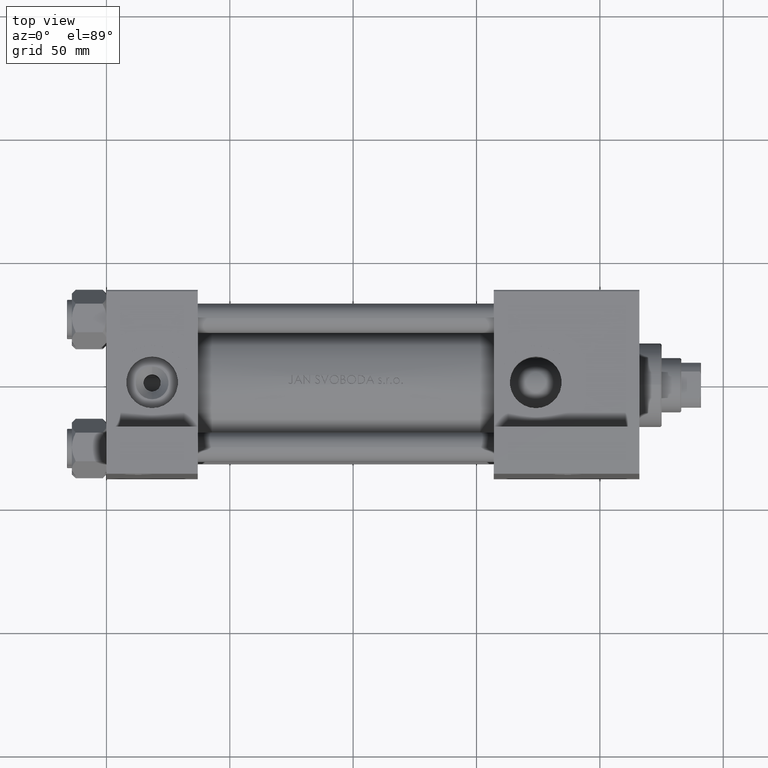
[diagram: clean part render]
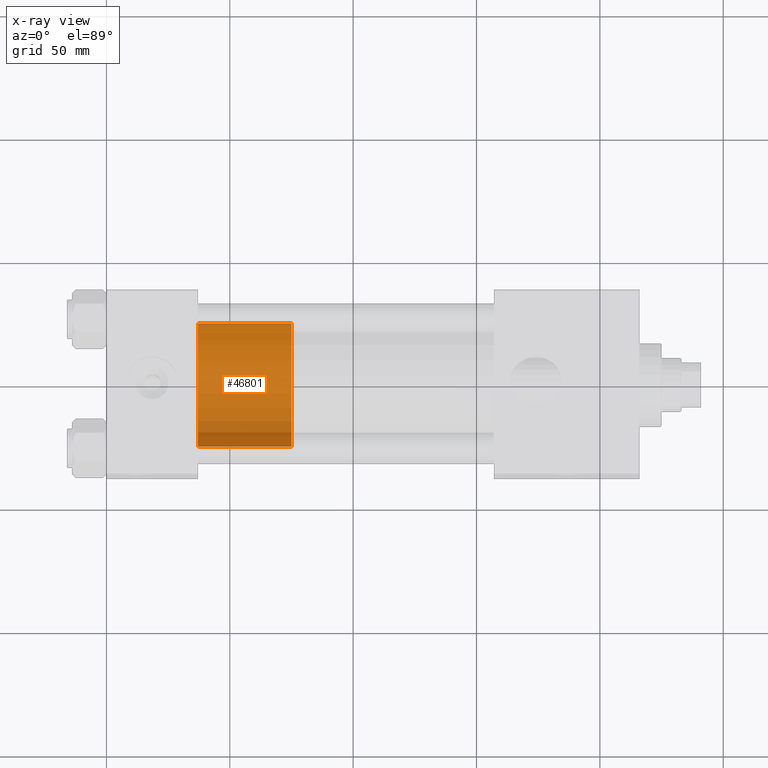
[diagram: x-ray — body ghosted, one internal face saturated and labeled with its STEP entity id]
A machine part, top view, then the same camera in x-ray: the body is ghosted and one INTERNAL B-rep face — a face not visible from any outside direction — is saturated and labeled: STEP entity #46801.
In plain terms, the highlighted cylindrical surface (partial cylindrical patch) has radius 25 mm, axis along (-1, 0, 0).
Its self-contained STEP definition (entity closure, byte-faithful):
#1608 = AXIS2_PLACEMENT_3D ( 'NONE', #28656, #23927, #8505 ) ;
#2032 = ORIENTED_EDGE ( 'NONE', *, *, #13743, .F. ) ;
#3540 = LINE ( 'NONE', #20458, #41339 ) ;
#4721 = VERTEX_POINT ( 'NONE', #38540 ) ;
#7839 = CARTESIAN_POINT ( 'NONE',  ( 25.00000000000000000, 3.061616997868383043E-15, 0.000000000000000000 ) ) ;
#8505 = DIRECTION ( 'NONE',  ( -1.000000000000000000, 0.000000000000000000, 0.000000000000000000 ) ) ;
#9762 = DIRECTION ( 'NONE',  ( 1.000000000000000000, 0.000000000000000000, 0.000000000000000000 ) ) ;
#9830 = CARTESIAN_POINT ( 'NONE',  ( 0.000000000000000000, 0.000000000000000000, 0.000000000000000000 ) ) ;
#11379 = DIRECTION ( 'NONE',  ( -0.000000000000000000, -0.000000000000000000, -1.000000000000000000 ) ) ;
#13743 = EDGE_CURVE ( 'NONE', #31753, #24606, #37278, .T. ) ;
#14034 = AXIS2_PLACEMENT_3D ( 'NONE', #9830, #37934, #18050 ) ;
#14486 = CARTESIAN_POINT ( 'NONE',  ( 0.000000000000000000, 0.000000000000000000, 38.00000000000000000 ) ) ;
#15145 = VERTEX_POINT ( 'NONE', #7839 ) ;
#18050 = DIRECTION ( 'NONE',  ( 1.000000000000000000, 0.000000000000000000, 0.000000000000000000 ) ) ;
#18633 = ORIENTED_EDGE ( 'NONE', *, *, #46717, .T. ) ;
#20458 = CARTESIAN_POINT ( 'NONE',  ( 25.00000000000000000, 3.061616997868383043E-15, 38.00000000000000000 ) ) ;
#23291 = ORIENTED_EDGE ( 'NONE', *, *, #28817, .F. ) ;
#23927 = DIRECTION ( 'NONE',  ( -0.000000000000000000, -0.000000000000000000, -1.000000000000000000 ) ) ;
#24606 = VERTEX_POINT ( 'NONE', #30584 ) ;
#25832 = CARTESIAN_POINT ( 'NONE',  ( -25.00000000000000000, 0.000000000000000000, 38.00000000000000000 ) ) ;
#28656 = CARTESIAN_POINT ( 'NONE',  ( 0.000000000000000000, 0.000000000000000000, 38.00000000000000000 ) ) ;
#28817 = EDGE_CURVE ( 'NONE', #4721, #31753, #32179, .T. ) ;
#29672 = DIRECTION ( 'NONE',  ( 0.000000000000000000, 0.000000000000000000, 1.000000000000000000 ) ) ;
#30584 = CARTESIAN_POINT ( 'NONE',  ( -25.00000000000000000, 0.000000000000000000, 0.000000000000000000 ) ) ;
#31654 = CYLINDRICAL_SURFACE ( 'NONE', #1608, 25.00000000000000000 ) ;
#31753 = VERTEX_POINT ( 'NONE', #48979 ) ;
#32179 = CIRCLE ( 'NONE', #38516, 25.00000000000000000 ) ;
#35878 = DIRECTION ( 'NONE',  ( -0.000000000000000000, -0.000000000000000000, -1.000000000000000000 ) ) ;
#36125 = FACE_OUTER_BOUND ( 'NONE', #39095, .T. ) ;
#36194 = EDGE_CURVE ( 'NONE', #15145, #24606, #43568, .T. ) ;
#37278 = LINE ( 'NONE', #25832, #47315 ) ;
#37934 = DIRECTION ( 'NONE',  ( 0.000000000000000000, 0.000000000000000000, 1.000000000000000000 ) ) ;
#38516 = AXIS2_PLACEMENT_3D ( 'NONE', #14486, #29672, #9762 ) ;
#38540 = CARTESIAN_POINT ( 'NONE',  ( 25.00000000000000000, 3.061616997868383043E-15, 38.00000000000000000 ) ) ;
#39095 = EDGE_LOOP ( 'NONE', ( #23291, #18633, #42785, #2032 ) ) ;
#41339 = VECTOR ( 'NONE', #35878, 1000.000000000000000 ) ;
#42785 = ORIENTED_EDGE ( 'NONE', *, *, #36194, .T. ) ;
#43568 = CIRCLE ( 'NONE', #14034, 25.00000000000000000 ) ;
#46717 = EDGE_CURVE ( 'NONE', #4721, #15145, #3540, .T. ) ;
#46801 = ADVANCED_FACE ( 'NONE', ( #36125 ), #31654, .T. ) ;
#47315 = VECTOR ( 'NONE', #11379, 1000.000000000000000 ) ;
#48979 = CARTESIAN_POINT ( 'NONE',  ( -25.00000000000000000, 0.000000000000000000, 38.00000000000000000 ) ) ;